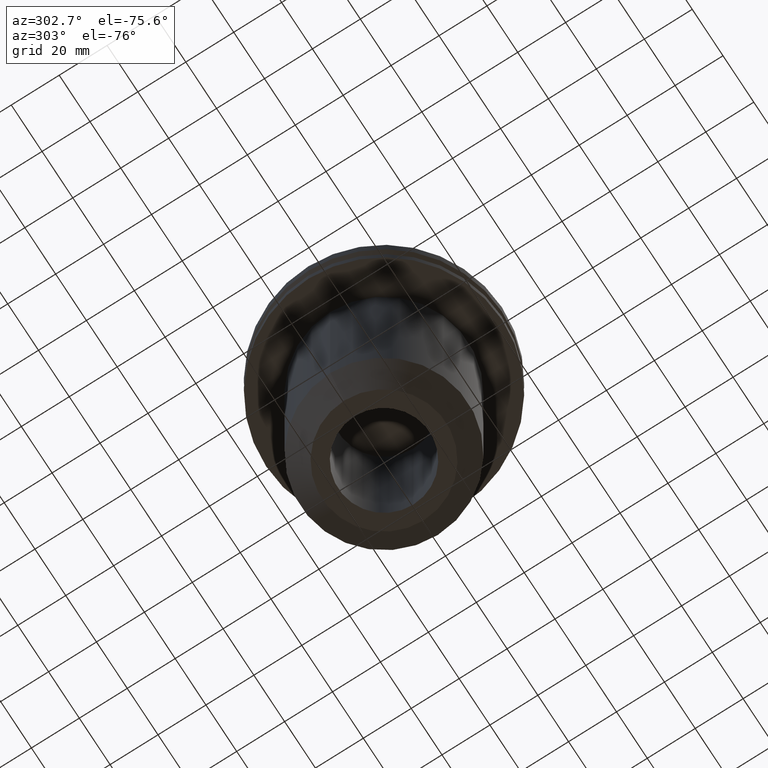
[diagram: clean part render]
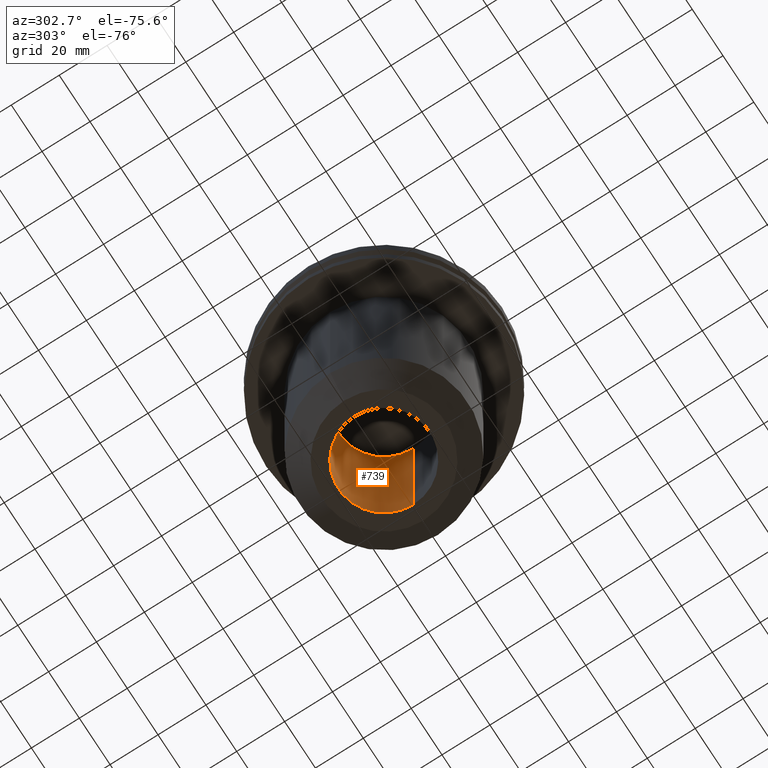
[diagram: same view with one face highlighted and labeled with its STEP entity id]
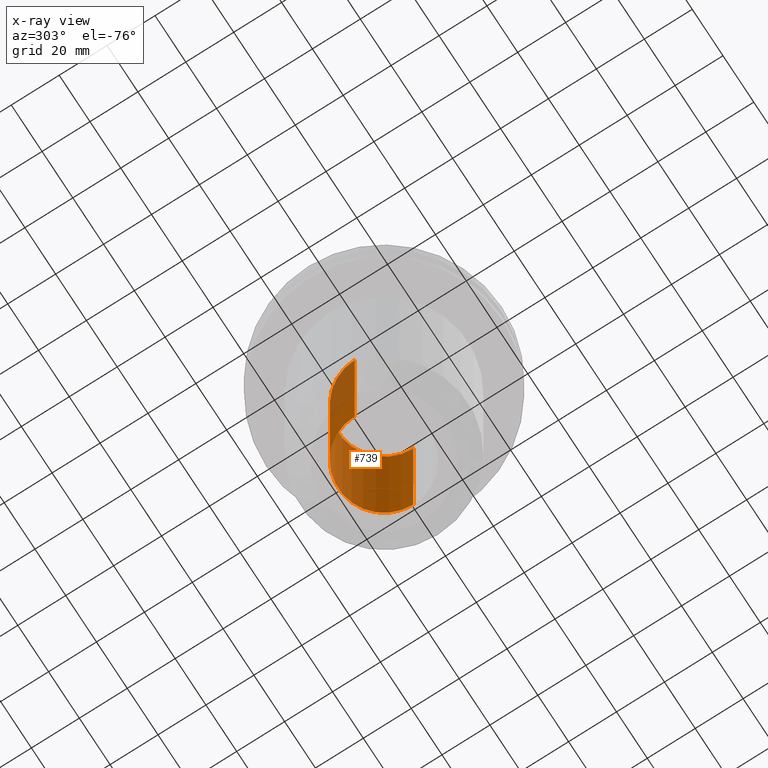
[diagram: x-ray of the same camera — body ghosted, the highlighted face saturated]
A machine part, auxiliary view. The second image highlights one B-rep face of the part: STEP entity #739.
The next image is the same camera in x-ray: the body ghosted, the highlighted face saturated — about 15% of this face is hidden behind the body in this view.
In plain terms, the highlighted cylindrical surface (partial cylindrical patch) has radius 19.05 mm, axis along (-0, -0, 1).
Its self-contained STEP definition (entity closure, byte-faithful):
#11 = AXIS2_PLACEMENT_3D ( 'NONE', #187, #664, #620 ) ;
#58 = VERTEX_POINT ( 'NONE', #602 ) ;
#59 = VECTOR ( 'NONE', #506, 1000.000000000000000 ) ;
#123 = VECTOR ( 'NONE', #379, 1000.000000000000000 ) ;
#134 = VERTEX_POINT ( 'NONE', #694 ) ;
#187 = CARTESIAN_POINT ( 'NONE',  ( 0.000000000000000000, 0.000000000000000000, -35.04999999999999716 ) ) ;
#196 = CARTESIAN_POINT ( 'NONE',  ( -19.04999999999999005, 2.332952152375706466E-15, 0.000000000000000000 ) ) ;
#213 = AXIS2_PLACEMENT_3D ( 'NONE', #522, #770, #462 ) ;
#217 = CARTESIAN_POINT ( 'NONE',  ( 19.04999999999998650, 0.000000000000000000, -114.2999999999999972 ) ) ;
#225 = CARTESIAN_POINT ( 'NONE',  ( 0.000000000000000000, 0.000000000000000000, -114.2999999999999972 ) ) ;
#368 = LINE ( 'NONE', #196, #123 ) ;
#379 = DIRECTION ( 'NONE',  ( -0.000000000000000000, -0.000000000000000000, 1.000000000000000000 ) ) ;
#403 = DIRECTION ( 'NONE',  ( -0.000000000000000000, -0.000000000000000000, 1.000000000000000000 ) ) ;
#411 = ORIENTED_EDGE ( 'NONE', *, *, #655, .F. ) ;
#439 = CARTESIAN_POINT ( 'NONE',  ( -19.04999999999999005, 2.332952152375706466E-15, -35.04999999999999716 ) ) ;
#448 = EDGE_CURVE ( 'NONE', #134, #449, #482, .T. ) ;
#449 = VERTEX_POINT ( 'NONE', #439 ) ;
#462 = DIRECTION ( 'NONE',  ( 1.000000000000000000, 0.000000000000000000, 0.000000000000000000 ) ) ;
#478 = CYLINDRICAL_SURFACE ( 'NONE', #213, 19.04999999999999005 ) ;
#482 = CIRCLE ( 'NONE', #11, 19.04999999999999005 ) ;
#483 = ORIENTED_EDGE ( 'NONE', *, *, #605, .T. ) ;
#505 = EDGE_CURVE ( 'NONE', #58, #449, #368, .T. ) ;
#506 = DIRECTION ( 'NONE',  ( -0.000000000000000000, -0.000000000000000000, 1.000000000000000000 ) ) ;
#507 = ORIENTED_EDGE ( 'NONE', *, *, #448, .T. ) ;
#519 = CARTESIAN_POINT ( 'NONE',  ( 19.04999999999999005, 0.000000000000000000, 0.000000000000000000 ) ) ;
#522 = CARTESIAN_POINT ( 'NONE',  ( 0.000000000000000000, 0.000000000000000000, 0.000000000000000000 ) ) ;
#530 = ORIENTED_EDGE ( 'NONE', *, *, #505, .F. ) ;
#562 = DIRECTION ( 'NONE',  ( 1.000000000000000000, 0.000000000000000000, 0.000000000000000000 ) ) ;
#593 = AXIS2_PLACEMENT_3D ( 'NONE', #225, #403, #562 ) ;
#602 = CARTESIAN_POINT ( 'NONE',  ( -19.04999999999998650, 2.332952152375706071E-15, -114.2999999999999972 ) ) ;
#605 = EDGE_CURVE ( 'NONE', #612, #134, #690, .T. ) ;
#612 = VERTEX_POINT ( 'NONE', #217 ) ;
#620 = DIRECTION ( 'NONE',  ( 1.000000000000000000, 0.000000000000000000, 0.000000000000000000 ) ) ;
#645 = FACE_OUTER_BOUND ( 'NONE', #769, .T. ) ;
#655 = EDGE_CURVE ( 'NONE', #612, #58, #748, .T. ) ;
#664 = DIRECTION ( 'NONE',  ( -0.000000000000000000, -0.000000000000000000, 1.000000000000000000 ) ) ;
#690 = LINE ( 'NONE', #519, #59 ) ;
#694 = CARTESIAN_POINT ( 'NONE',  ( 19.04999999999999005, 0.000000000000000000, -35.04999999999999716 ) ) ;
#739 = ADVANCED_FACE ( 'NONE', ( #645 ), #478, .F. ) ;
#748 = CIRCLE ( 'NONE', #593, 19.04999999999998650 ) ;
#769 = EDGE_LOOP ( 'NONE', ( #530, #411, #483, #507 ) ) ;
#770 = DIRECTION ( 'NONE',  ( -0.000000000000000000, -0.000000000000000000, 1.000000000000000000 ) ) ;